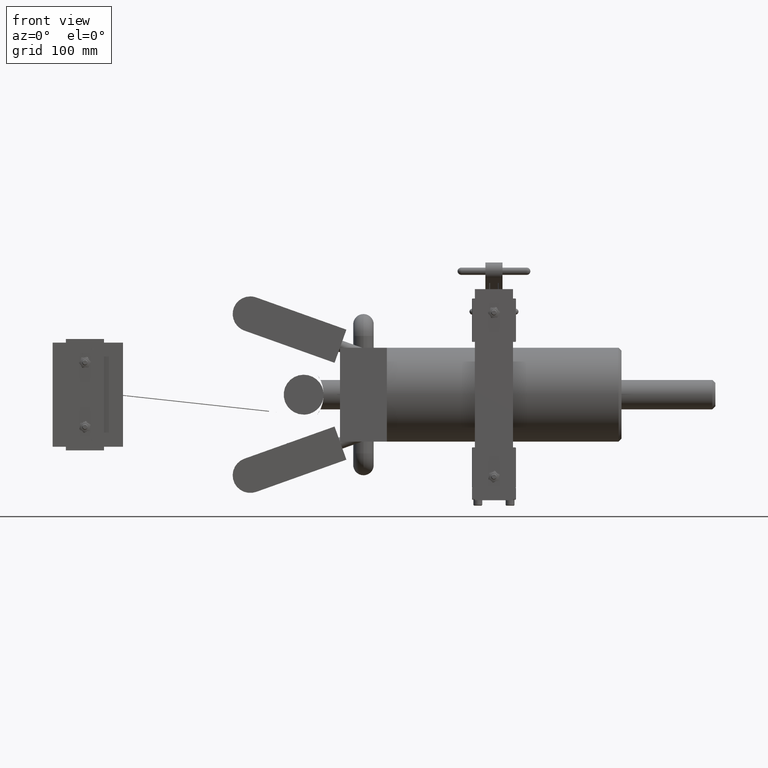
[diagram: clean part render]
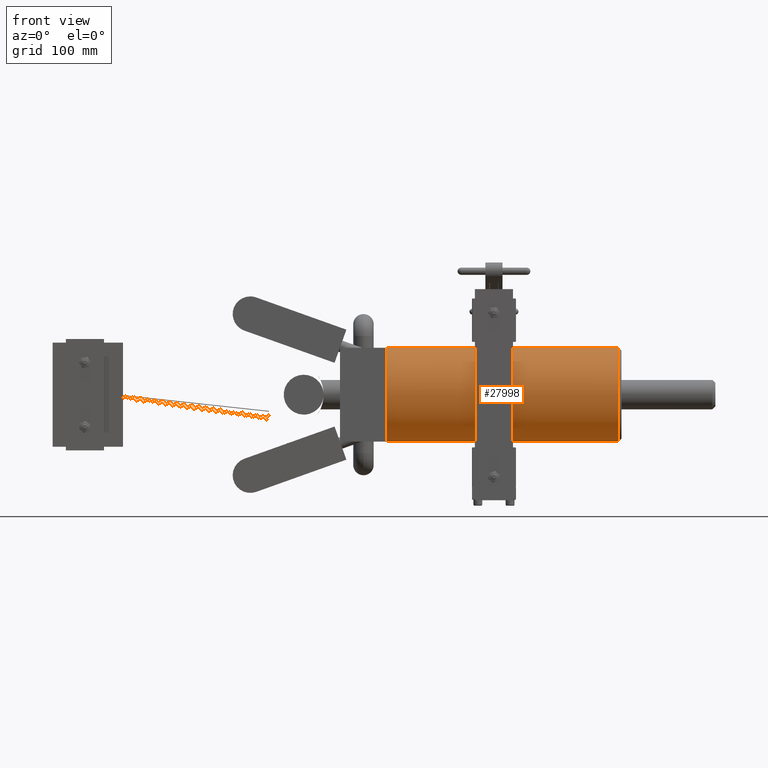
[diagram: same view with one face highlighted and labeled with its STEP entity id]
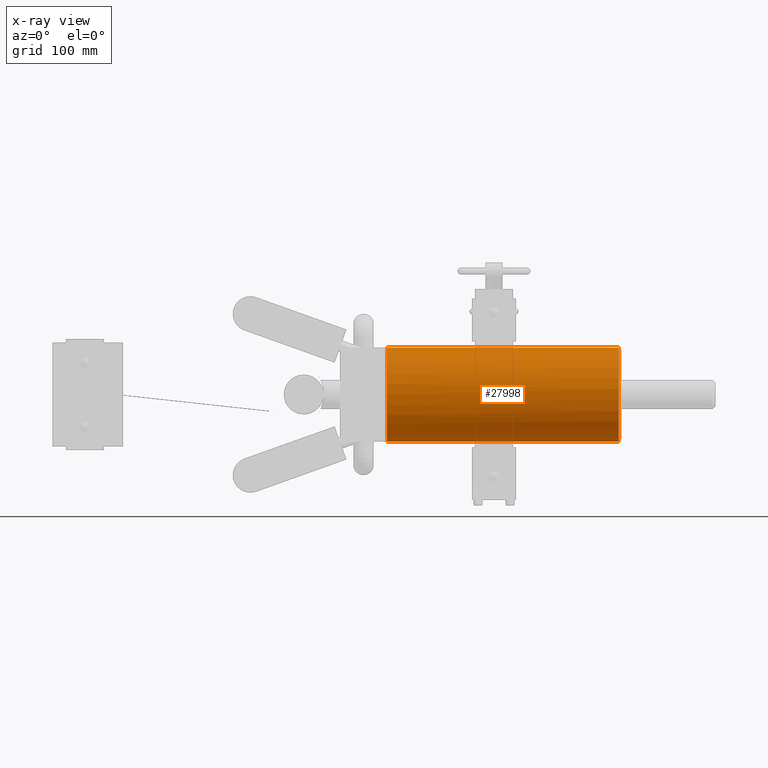
[diagram: x-ray of the same camera — body ghosted, the highlighted face saturated]
A machine part, front view. The second image highlights one B-rep face of the part: STEP entity #27998.
The next image is the same camera in x-ray: the body ghosted, the highlighted face saturated — about 1% of this face is hidden behind the body in this view.
In plain terms, the highlighted cylindrical surface (partial cylindrical patch) has radius 50.8 mm, axis along (-1, 0, 0).
Its self-contained STEP definition (entity closure, byte-faithful):
#4276 = FACE_OUTER_BOUND ( 'NONE', #32612, .T. ) ;
#5315 = VERTEX_POINT ( 'NONE', #22502 ) ;
#5791 = CARTESIAN_POINT ( 'NONE',  ( 1.999999999999986700, 13.70000000000002800, -3.358067167271956800E-015 ) ) ;
#6584 = DIRECTION ( 'NONE',  ( 1.000000000000000000, -1.092739197465705300E-015, -3.992478743742045700E-017 ) ) ;
#7617 = CIRCLE ( 'NONE', #44220, 2.000000000000000000 ) ;
#7982 = VECTOR ( 'NONE', #30204, 39.37007874015748100 ) ;
#8107 = AXIS2_PLACEMENT_3D ( 'NONE', #35093, #14762, #6584 ) ;
#10176 = DIRECTION ( 'NONE',  ( 1.019818442869539300E-015, -1.000000000000000000, 1.072969629702608600E-016 ) ) ;
#12022 = EDGE_CURVE ( 'NONE', #5315, #45578, #44303, .T. ) ;
#14583 = ORIENTED_EDGE ( 'NONE', *, *, #26534, .F. ) ;
#14639 = ORIENTED_EDGE ( 'NONE', *, *, #52825, .T. ) ;
#14762 = DIRECTION ( 'NONE',  ( 1.019818442869539300E-015, -1.000000000000000000, 1.072969629702608600E-016 ) ) ;
#16070 = CARTESIAN_POINT ( 'NONE',  ( -2.000000000000013300, 13.70000000000003100, -2.953438657692803500E-015 ) ) ;
#16186 = DIRECTION ( 'NONE',  ( 1.019818442869539300E-015, -1.000000000000000000, 1.072969629702608600E-016 ) ) ;
#17255 = VECTOR ( 'NONE', #36380, 39.37007874015748100 ) ;
#18345 = AXIS2_PLACEMENT_3D ( 'NONE', #40583, #16186, #44672 ) ;
#18558 = DIRECTION ( 'NONE',  ( 1.019818442869539300E-015, -1.000000000000000000, 1.072969629702608600E-016 ) ) ;
#18800 = LINE ( 'NONE', #5791, #7982 ) ;
#20827 = CARTESIAN_POINT ( 'NONE',  ( -1.333601551938692700E-014, 13.70000000000002900, -2.000000000000001800 ) ) ;
#20915 = EDGE_CURVE ( 'NONE', #5315, #33814, #48429, .T. ) ;
#22502 = CARTESIAN_POINT ( 'NONE',  ( -2.000000000000023500, 23.57500000000005600, -3.483217412358468800E-015 ) ) ;
#24686 = CYLINDRICAL_SURFACE ( 'NONE', #8107, 2.000000000000000000 ) ;
#26534 = EDGE_CURVE ( 'NONE', #33814, #50462, #7617, .T. ) ;
#27998 = ADVANCED_FACE ( 'NONE', ( #4276 ), #24686, .T. ) ;
#30204 = DIRECTION ( 'NONE',  ( 1.019818442869539300E-015, -1.000000000000000000, 1.072969629702608600E-016 ) ) ;
#32612 = EDGE_LOOP ( 'NONE', ( #38140, #49857, #14639, #51810, #14583 ) ) ;
#33814 = VERTEX_POINT ( 'NONE', #47144 ) ;
#34594 = CARTESIAN_POINT ( 'NONE',  ( -2.348657221759849400E-014, 23.57500000000005600, -3.278217592397115900E-015 ) ) ;
#35093 = CARTESIAN_POINT ( 'NONE',  ( -1.341586509426177100E-014, 13.70000000000002900, -3.278217592397115900E-015 ) ) ;
#35395 = VERTEX_POINT ( 'NONE', #45623 ) ;
#35833 = EDGE_CURVE ( 'NONE', #50462, #35395, #38253, .T. ) ;
#36380 = DIRECTION ( 'NONE',  ( 1.019818442869539300E-015, -1.000000000000000000, 1.072969629702608600E-016 ) ) ;
#38140 = ORIENTED_EDGE ( 'NONE', *, *, #20915, .F. ) ;
#38253 = CIRCLE ( 'NONE', #18345, 2.000000000000000000 ) ;
#38679 = DIRECTION ( 'NONE',  ( -1.000000000000000000, 0.0000000000000000000, 3.992478743742045700E-017 ) ) ;
#40583 = CARTESIAN_POINT ( 'NONE',  ( -1.341586509426177100E-014, 13.70000000000002900, -3.278217592397115900E-015 ) ) ;
#42969 = CARTESIAN_POINT ( 'NONE',  ( -1.341586509426177100E-014, 13.70000000000002900, -3.278217592397115900E-015 ) ) ;
#43023 = CARTESIAN_POINT ( 'NONE',  ( 1.999999999999976500, 23.57500000000005600, -3.887845921937621700E-015 ) ) ;
#44220 = AXIS2_PLACEMENT_3D ( 'NONE', #42969, #18558, #47057 ) ;
#44303 = CIRCLE ( 'NONE', #51867, 2.000000000000000000 ) ;
#44672 = DIRECTION ( 'NONE',  ( 1.000000000000000000, -1.092739197465705300E-015, -3.992478743742045700E-017 ) ) ;
#45578 = VERTEX_POINT ( 'NONE', #43023 ) ;
#45623 = CARTESIAN_POINT ( 'NONE',  ( 1.999999999999987100, 13.70000000000002800, -3.278217592397115900E-015 ) ) ;
#47057 = DIRECTION ( 'NONE',  ( 1.000000000000000000, -1.092739197465705300E-015, -3.992478743742045700E-017 ) ) ;
#47144 = CARTESIAN_POINT ( 'NONE',  ( -2.000000000000012900, 13.70000000000004000, -3.278217592397115900E-015 ) ) ;
#48429 = LINE ( 'NONE', #16070, #17255 ) ;
#49857 = ORIENTED_EDGE ( 'NONE', *, *, #12022, .T. ) ;
#50462 = VERTEX_POINT ( 'NONE', #20827 ) ;
#51810 = ORIENTED_EDGE ( 'NONE', *, *, #35833, .F. ) ;
#51867 = AXIS2_PLACEMENT_3D ( 'NONE', #34594, #10176, #38679 ) ;
#52825 = EDGE_CURVE ( 'NONE', #45578, #35395, #18800, .T. ) ;